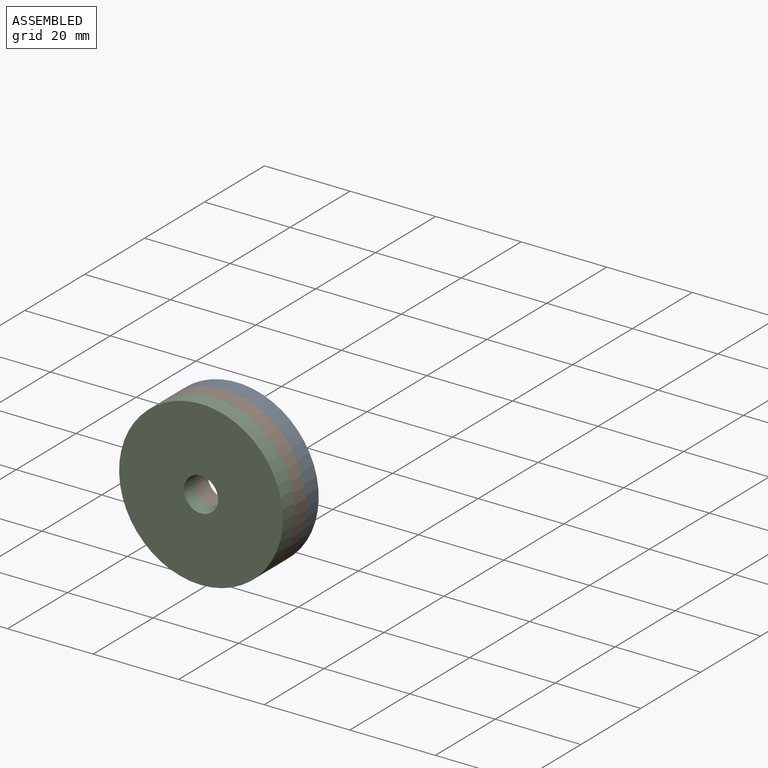
[diagram: assembled view]
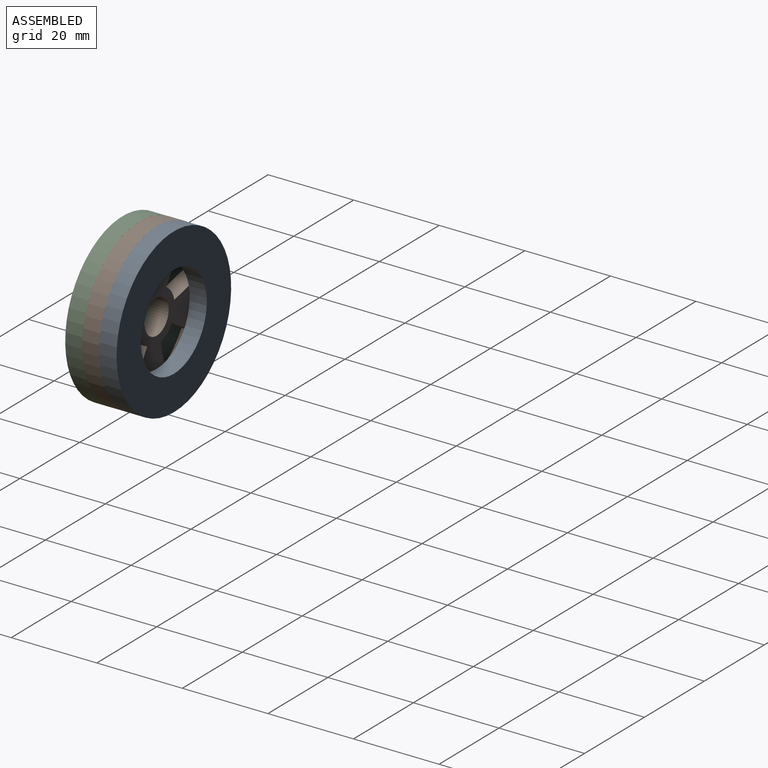
[diagram: assembled view, second angle]
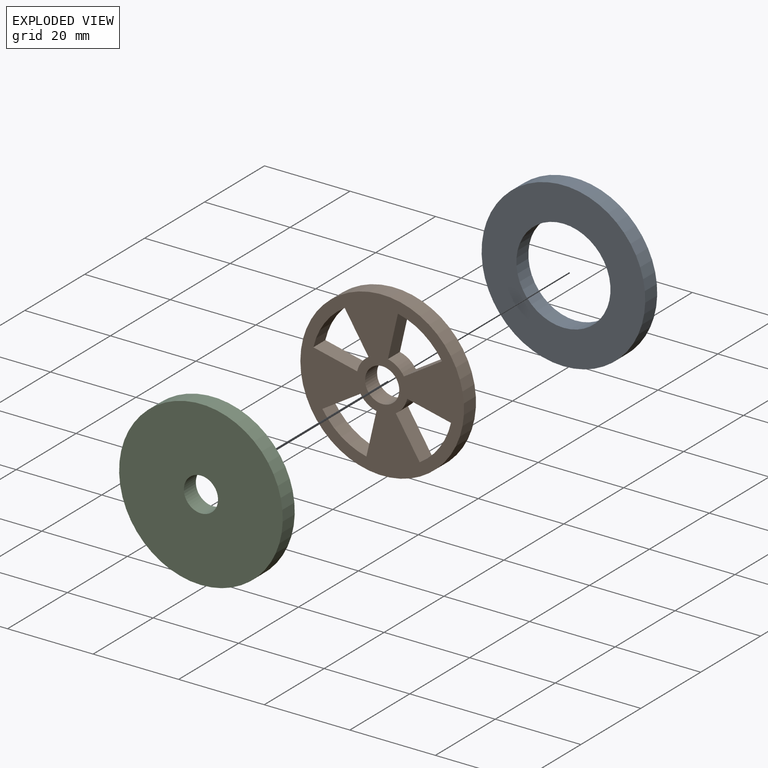
[diagram: exploded view]
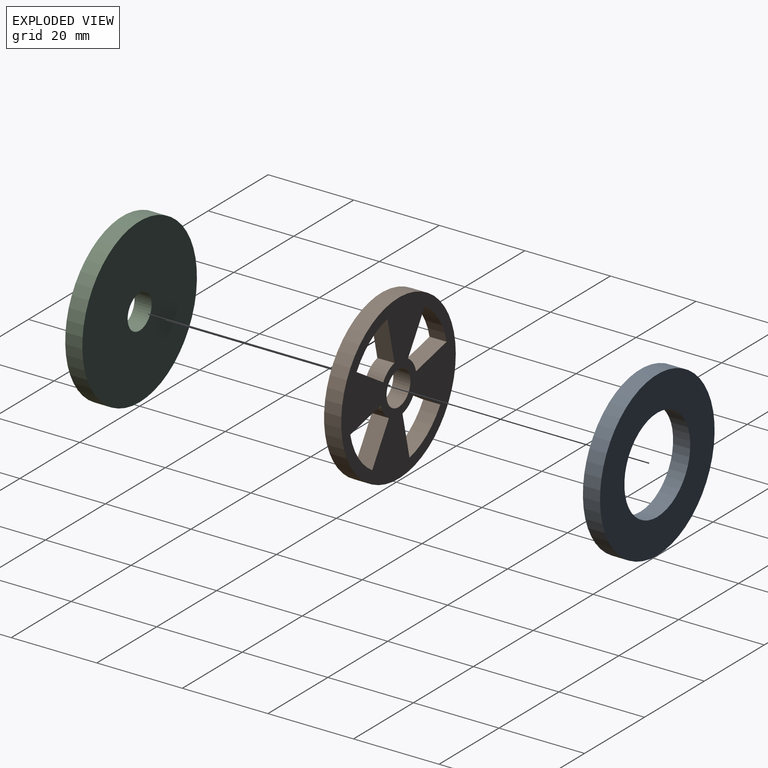
[diagram: exploded view, second angle]
ASSEMBLY  parts=3 mates=2
PART A: 4 faces, bbox 38.3x4x38.3 mm
  f0: cylinder r=11mm len=22mm, axis (0,1,0), area 276.5mm2, adj f2,f3
  f1: cylinder r=19.12mm len=38.25mm, axis (0,1,0), area 480.7mm2, adj f2,f3
  f2: plane 38.25x38.25mm, normal (0,-1,0), area 769mm2, adj f0,f1
  f3: plane 38.25x38.25mm, normal (0,1,0), area 769mm2, adj f0,f1
PART B: 20 faces, bbox 38.3x4x38.3 mm
  f0: cylinder r=6mm len=4mm, axis (0,1,0), area 18.8mm2, adj f6,f12,f13,f19
  f1: cylinder r=6mm len=4mm, axis (0,1,0), area 18.8mm2, adj f12,f13,f17,f18
  f2: cylinder r=6mm len=4mm, axis (0,1,0), area 18.8mm2, adj f12,f13,f14,f16
  f3: cylinder r=16.5mm len=10.29mm, axis (0,1,0), area 51.8mm2, adj f6,f12,f13,f19
  f4: cylinder r=16.5mm len=10.29mm, axis (0,1,0), area 51.8mm2, adj f12,f13,f17,f18
  f5: cylinder r=16.5mm len=10.29mm, axis (0,1,0), area 51.8mm2, adj f12,f13,f14,f16
  f6: plane 8.9x5.58mm, normal (-0.53,0,0.85), area 42mm2, adj f0,f3,f12,f13
  f7: cylinder r=6mm len=4mm, axis (0,1,0), area 18.8mm2, adj f8,f12,f13,f15
  f8: plane 10.24x4mm, normal (-0.22,0,-0.97), area 42mm2, adj f7,f9,f12,f13
  f9: cylinder r=16.5mm len=10.29mm, axis (0,1,0), area 51.8mm2, adj f8,f12,f13,f15
  f10: cylinder r=4mm len=8mm, axis (0,1,0), area 100.5mm2, adj f12,f13
  f11: cylinder r=19.12mm len=38.25mm, axis (0,1,0), area 480.7mm2, adj f12,f13
  f12: plane 38.25x38.25mm, normal (0,-1,0), area 727.7mm2, adj f0,f1,f2,f3,f4,f5,f6,f7
  f13: plane 38.25x38.25mm, normal (0,1,0), area 727.7mm2, adj f0,f1,f2,f3,f4,f5,f6,f7
  f14: plane 10.24x4mm, normal (-0.97,0,0.22), area 42mm2, adj f2,f5,f12,f13
  f15: plane 8.9x5.58mm, normal (0.85,0,0.53), area 42mm2, adj f7,f9,f12,f13
  f16: plane 8.9x5.58mm, normal (0.53,0,-0.85), area 42mm2, adj f2,f5,f12,f13
  f17: plane 10.24x4mm, normal (0.22,0,0.97), area 42mm2, adj f1,f4,f12,f13
  f18: plane 8.9x5.58mm, normal (-0.85,0,-0.53), area 42mm2, adj f1,f4,f12,f13
  f19: plane 10.24x4mm, normal (0.97,0,-0.22), area 42mm2, adj f0,f3,f12,f13
PART C: 4 faces, bbox 38.3x4x38.3 mm
  f0: cylinder r=4mm len=8mm, axis (0,1,0), area 100.5mm2, adj f2,f3
  f1: cylinder r=19.12mm len=38.25mm, axis (0,1,0), area 480.7mm2, adj f2,f3
  f2: plane 38.25x38.25mm, normal (0,-1,0), area 1098.8mm2, adj f0,f1
  f3: plane 38.25x38.25mm, normal (0,1,0), area 1098.8mm2, adj f0,f1
PLACE A t=(0,8,0)mm
PLACE B t=(0,8,0)mm
PLACE C at identity fixed
MATE fastened C.f1 <-> B.f10  axis (0,1,0) through (0,0,0)mm
MATE fastened B.f10 <-> A.f1  axis (0,1,0) through (0,4,0)mm
